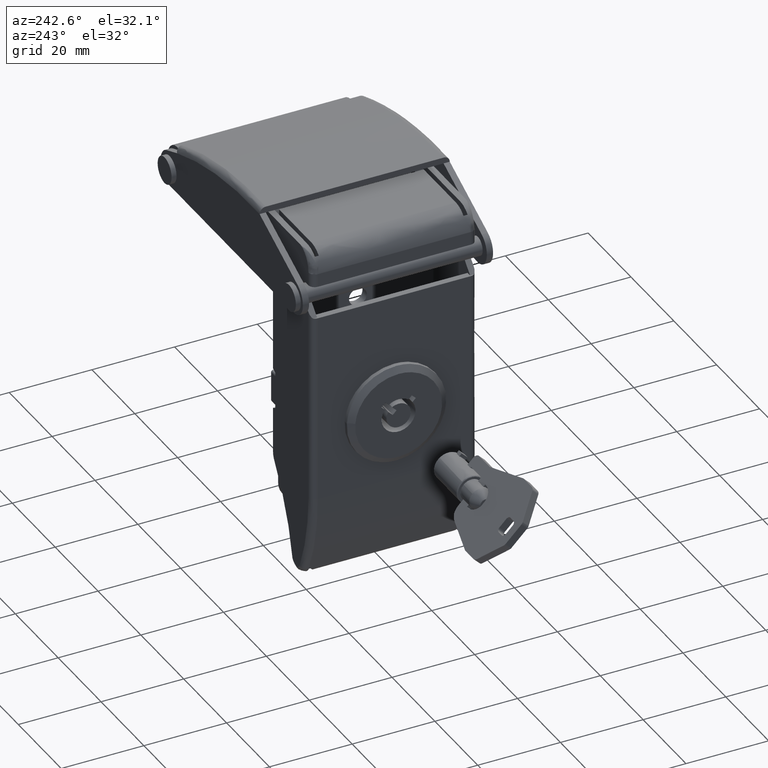
[diagram: clean part render]
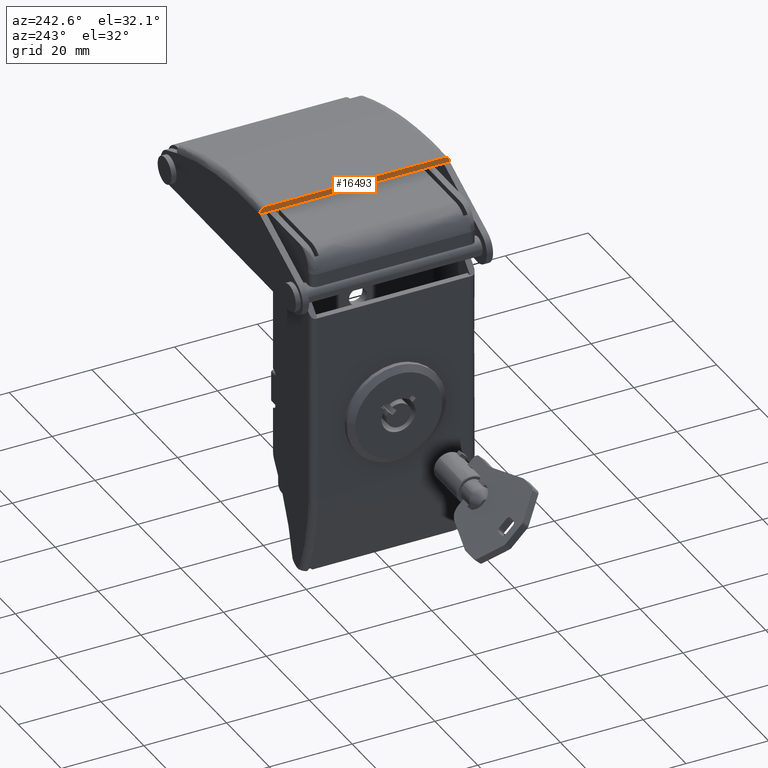
[diagram: same view with one face highlighted and labeled with its STEP entity id]
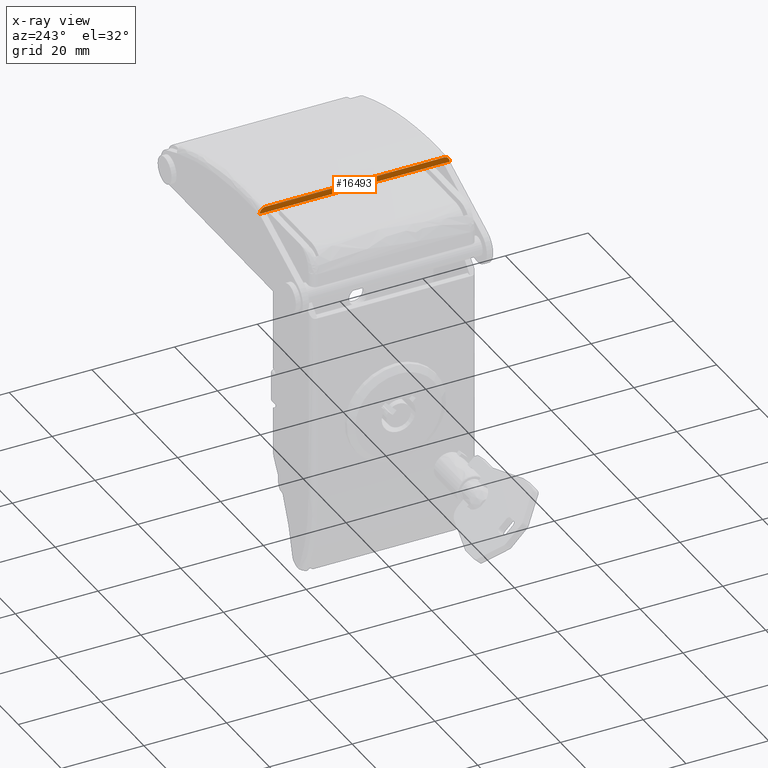
[diagram: x-ray of the same camera — body ghosted, the highlighted face saturated]
A machine part, auxiliary view. The second image highlights one B-rep face of the part: STEP entity #16493.
The next image is the same camera in x-ray: the body ghosted, the highlighted face saturated — about 0% of this face is hidden behind the body in this view.
In plain terms, the highlighted face is a freeform B-spline surface patch.
Its self-contained STEP definition (entity closure, byte-faithful):
#15953=CARTESIAN_POINT('',(15.999777542248649,23.000000000358298,11.931601836474400));
#15954=VERTEX_POINT('',#15953);
#16106=CARTESIAN_POINT('',(15.999777542244701,21.500000000358352,11.931601836474400));
#16107=VERTEX_POINT('',#16106);
#16195=CARTESIAN_POINT('',(15.938275861711800,21.500000000358451,13.430340487239960));
#16196=VERTEX_POINT('',#16195);
#16197=CARTESIAN_POINT('',(15.938275861711800,21.500000000358451,13.430340487239960));
#16198=CARTESIAN_POINT('',(15.938270479567800,21.671826292458000,13.430471645068961));
#16199=CARTESIAN_POINT('',(15.940287245701761,21.953984981526069,13.381324933440879));
#16200=CARTESIAN_POINT('',(15.947172208865091,22.297939904676380,13.213544795993780));
#16201=CARTESIAN_POINT('',(15.957121941114989,22.609147107517732,12.971079091519840));
#16202=CARTESIAN_POINT('',(15.974125049384609,22.908876716456199,12.556729185024890));
#16203=CARTESIAN_POINT('',(15.990718921292560,23.000334872050779,12.152351987189620));
#16204=CARTESIAN_POINT('',(15.999777542248649,23.000000000358298,11.931601836474400));
#16205=B_SPLINE_CURVE_WITH_KNOTS('',3,(#16197,#16198,#16199,#16200,#16201,#16202,#16203,#16204),.UNSPECIFIED.,.F.,.U.,(4,1,1,1,1,4),(0.000000184384346,0.515431269136306,0.846781399970771,1.141333209955672,1.693552221863083,2.356253616520875),.UNSPECIFIED.);
#16206=EDGE_CURVE('',#16196,#15954,#16205,.T.);
#16333=CARTESIAN_POINT('',(15.999777542248649,23.000000000358298,11.931601836474400));
#16334=CARTESIAN_POINT('',(15.999777542244701,21.500000000358352,11.931601836474400));
#16335=QUASI_UNIFORM_CURVE('',1,(#16333,#16334),.UNSPECIFIED.,.F.,.U.);
#16336=EDGE_CURVE('',#15954,#16107,#16335,.T.);
#16365=CARTESIAN_POINT('',(15.999777542188150,-21.500000000400298,11.931601836474419));
#16366=VERTEX_POINT('',#16365);
#16380=CARTESIAN_POINT('',(15.999777542188150,-21.500000000400298,11.931601836474419));
#16381=CARTESIAN_POINT('',(15.999777542244701,21.500000000358352,11.931601836474400));
#16382=QUASI_UNIFORM_CURVE('',1,(#16380,#16381),.UNSPECIFIED.,.F.,.U.);
#16383=EDGE_CURVE('',#16366,#16107,#16382,.T.);
#16440=CARTESIAN_POINT('',(15.938275861711800,-21.500000000400298,13.430340487239960));
#16441=VERTEX_POINT('',#16440);
#16442=CARTESIAN_POINT('',(15.938275861711800,-21.500000000400298,13.430340487239960));
#16443=CARTESIAN_POINT('',(15.938275861711800,21.500000000358451,13.430340487239960));
#16444=QUASI_UNIFORM_CURVE('',1,(#16442,#16443),.UNSPECIFIED.,.F.,.U.);
#16445=EDGE_CURVE('',#16441,#16196,#16444,.T.);
#16463=CARTESIAN_POINT('',(16.002849551008911,-25.297699911281320,11.856739843770910));
#16464=CARTESIAN_POINT('',(15.935203851241511,-25.297699911281320,13.505202520140280));
#16465=CARTESIAN_POINT('',(16.002849551008911,25.297701145055409,11.856739843770910));
#16466=CARTESIAN_POINT('',(15.935203851241511,25.297701145055409,13.505202520140280));
#16467=B_SPLINE_SURFACE_WITH_KNOTS('',1,1,((#16463,#16465),(#16464,#16466)),.UNSPECIFIED.,.F.,.F.,.U.,(2,2),(2,2),(0.041708334948495,0.958291687403247),(0.0,50.595401056336733),.UNSPECIFIED.);
#16468=ORIENTED_EDGE('',*,*,#16445,.T.);
#16469=ORIENTED_EDGE('',*,*,#16206,.T.);
#16470=ORIENTED_EDGE('',*,*,#16336,.T.);
#16471=ORIENTED_EDGE('',*,*,#16383,.F.);
#16472=CARTESIAN_POINT('',(15.999777542188200,-23.000000000400352,11.931601836474400));
#16473=VERTEX_POINT('',#16472);
#16474=CARTESIAN_POINT('',(15.999777542188200,-23.000000000400352,11.931601836474400));
#16475=CARTESIAN_POINT('',(15.999777542188150,-21.500000000400298,11.931601836474419));
#16476=QUASI_UNIFORM_CURVE('',1,(#16474,#16475),.UNSPECIFIED.,.F.,.U.);
#16477=EDGE_CURVE('',#16473,#16366,#16476,.T.);
#16478=ORIENTED_EDGE('',*,*,#16477,.F.);
#16479=CARTESIAN_POINT('',(15.999777542188200,-23.000000000400352,11.931601836474400));
#16480=CARTESIAN_POINT('',(15.992732777983720,-23.000111995863531,12.103276176373580));
#16481=CARTESIAN_POINT('',(15.979150116381490,-22.942463136229058,12.434272984349640));
#16482=CARTESIAN_POINT('',(15.963525221523989,-22.732720053282740,12.815037113971361));
#16483=CARTESIAN_POINT('',(15.952542110483909,-22.477570370297830,13.082685296815360));
#16484=CARTESIAN_POINT('',(15.944233736263561,-22.182352746548279,13.285152635467950));
#16485=CARTESIAN_POINT('',(15.939265379435540,-21.843621824261220,13.406226862259089));
#16486=CARTESIAN_POINT('',(15.938275707860180,-21.598171150439551,13.430344236422251));
#16487=CARTESIAN_POINT('',(15.938275861711800,-21.500000000400298,13.430340487239960));
#16488=B_SPLINE_CURVE_WITH_KNOTS('',3,(#16479,#16480,#16481,#16482,#16483,#16484,#16485,#16486,#16487),.UNSPECIFIED.,.F.,.U.,(4,1,1,1,1,1,4),(0.000000184388935,0.515431269139452,0.994052398856593,1.288550436477206,1.619923058571122,2.061726365275812,2.356253616518465),.UNSPECIFIED.);
#16489=EDGE_CURVE('',#16473,#16441,#16488,.T.);
#16490=ORIENTED_EDGE('',*,*,#16489,.T.);
#16491=EDGE_LOOP('',(#16468,#16469,#16470,#16471,#16478,#16490));
#16492=FACE_OUTER_BOUND('',#16491,.T.);
#16493=ADVANCED_FACE('',(#16492),#16467,.T.);